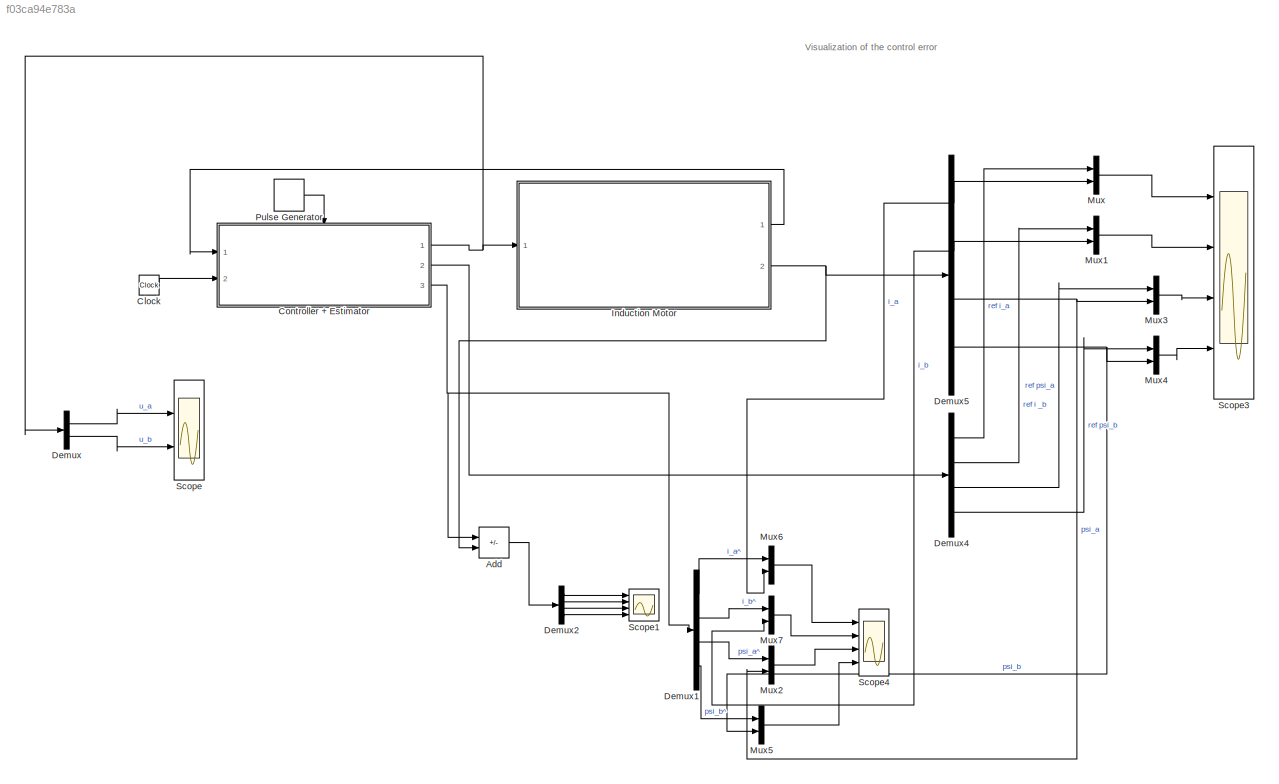
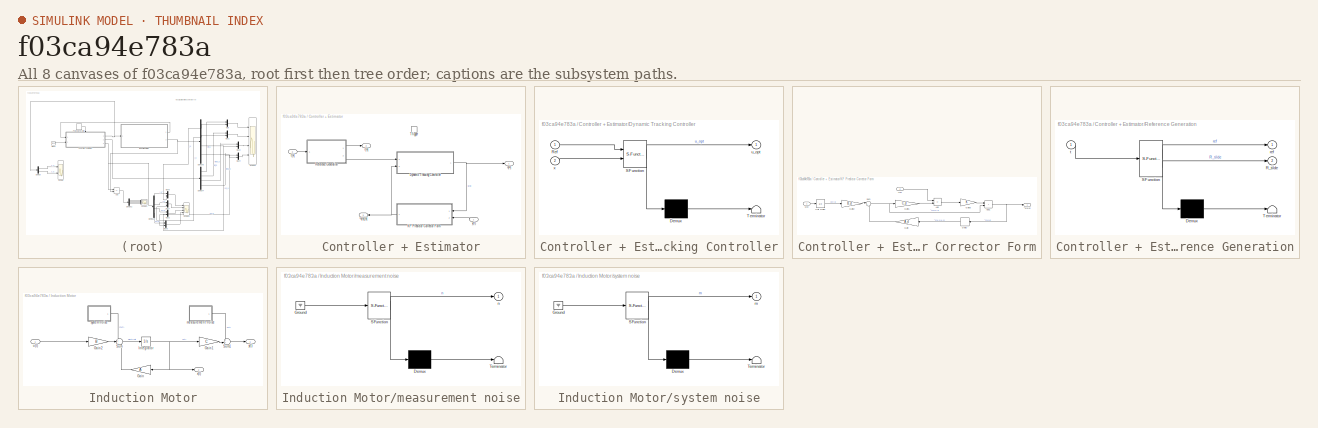
[diagram: thumbnail index - all 8 canvases of the model, root first then tree order]
MODEL slx_f03ca94e783a
KIND model
CONFIG AbsTol = auto
CONFIG EnableMultiTasking = off
CONFIG FixedStep = auto
CONFIG MaxStep = 1e-4
CONFIG MinStep = auto
CONFIG RelTol = 1e-9
CONFIG SampleTimeConstraint = Unconstrained
CONFIG SolverName = VariableStepAuto
CONFIG StartTime = 0.0
CONFIG StopTime = 1
BLOCK [Sum] Add
  IconShape = rectangular
  Inputs = +-
  Ports = [2, 1]
BLOCK [Clock] Clock
BLOCK [SubSystem] Controller + Estimator
  Ports = [2, 3, 0, 1]
  RequestExecContextInheritance = off
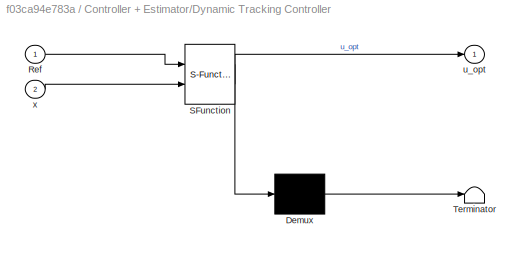
BLOCK [SubSystem] Controller + Estimator/Dynamic Tracking Controller
  ErrorFcn = Stateflow.Translate.translate
  PermitHierarchicalResolution = ExplicitOnly
  Ports = [2, 1]
  RequestExecContextInheritance = off
  SFBlockType = MATLAB Function
  TreatAsAtomicUnit = on
BLOCK [Demux] Controller + Estimator/Dynamic Tracking Controller/ Demux 
  Outputs = 1
  Ports = [1, 1]
BLOCK [S-Function] Controller + Estimator/Dynamic Tracking Controller/ SFunction 
  EnableBusSupport = on
  FunctionName = sf_sfun
  Parameters = Akf,Bkf,Ckf,D_cal,E_cal,Omega_u,Omega_x,Qkf,Rkf,W_cal_u,W_cal_x
  PortCounts = [2 2]
  Ports = [2, 2]
  SFcnIsStateOwnerBlock = off
  SFunctionDeploymentMode = off
  Tag = Stateflow S-Function 7
BLOCK [Terminator] Controller + Estimator/Dynamic Tracking Controller/ Terminator 
BLOCK [Inport] Controller + Estimator/Dynamic Tracking Controller/Ref
BLOCK [Outport] Controller + Estimator/Dynamic Tracking Controller/u_opt
BLOCK [Inport] Controller + Estimator/Dynamic Tracking Controller/x
  Port = 2
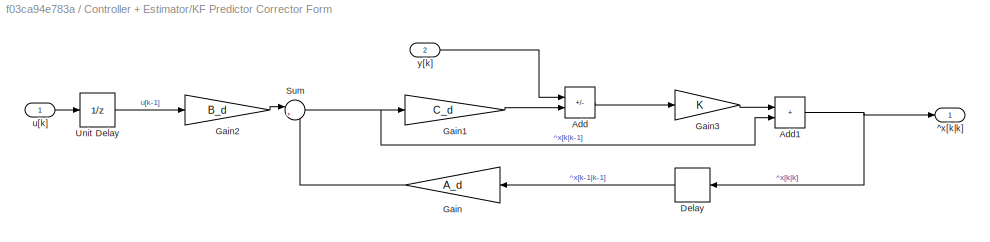
BLOCK [SubSystem] Controller + Estimator/KF Predictor Corrector Form
  Ports = [2, 1]
  RequestExecContextInheritance = off
BLOCK [Sum] Controller + Estimator/KF Predictor Corrector Form/Add
  IconShape = rectangular
  Inputs = +-
  Ports = [2, 1]
BLOCK [Sum] Controller + Estimator/KF Predictor Corrector Form/Add1
  IconShape = rectangular
  Ports = [2, 1]
BLOCK [Delay] Controller + Estimator/KF Predictor Corrector Form/Delay
  DelayLength = 1
  InitialCondition = x0
  InputPortMap = u0
  NameLocation = top
  Ports = [1, 1]
BLOCK [Gain] Controller + Estimator/KF Predictor Corrector Form/Gain
  Gain = A_d
  Multiplication = Matrix(K*u) (u vector)
BLOCK [Gain] Controller + Estimator/KF Predictor Corrector Form/Gain1
  Gain = C_d
  Multiplication = Matrix(K*u) (u vector)
BLOCK [Gain] Controller + Estimator/KF Predictor Corrector Form/Gain2
  Gain = B_d
  Multiplication = Matrix(K*u) (u vector)
BLOCK [Gain] Controller + Estimator/KF Predictor Corrector Form/Gain3
  Gain = K
  Multiplication = Matrix(K*u) (u vector)
BLOCK [Sum] Controller + Estimator/KF Predictor Corrector Form/Sum
  Inputs = |++
  Ports = [2, 1]
BLOCK [UnitDelay] Controller + Estimator/KF Predictor Corrector Form/Unit Delay
  HasFrameUpgradeWarning = on
  SampleTime = -1
BLOCK [Outport] Controller + Estimator/KF Predictor Corrector Form/^x[k|k]
BLOCK [Inport] Controller + Estimator/KF Predictor Corrector Form/u[k]
BLOCK [Inport] Controller + Estimator/KF Predictor Corrector Form/y[k]
  Port = 2
BLOCK [SubSystem] Controller + Estimator/Reference Generation
  ErrorFcn = Stateflow.Translate.translate
  PermitHierarchicalResolution = ExplicitOnly
  Ports = [1, 2]
  RequestExecContextInheritance = off
  SFBlockType = MATLAB Function
  TreatAsAtomicUnit = on
BLOCK [Demux] Controller + Estimator/Reference Generation/ Demux 
  Outputs = 1
  Ports = [1, 1]
BLOCK [S-Function] Controller + Estimator/Reference Generation/ SFunction 
  EnableBusSupport = on
  FunctionName = sf_sfun
  Parameters = T_s,i_alphabeta_0,kf,psi_alphabeta_0,w_el
  PortCounts = [1 3]
  Ports = [1, 3]
  SFcnIsStateOwnerBlock = off
  SFunctionDeploymentMode = off
  Tag = Stateflow S-Function 5
BLOCK [Terminator] Controller + Estimator/Reference Generation/ Terminator 
BLOCK [Outport] Controller + Estimator/Reference Generation/R_tilde
  Port = 2
BLOCK [Outport] Controller + Estimator/Reference Generation/ref
BLOCK [Inport] Controller + Estimator/Reference Generation/t
BLOCK [TriggerPort] Controller + Estimator/Trigger
  PortDimensions = 1
  Ports = []
  StatesWhenEnabling = held
  VariantControl = (inherit)
BLOCK [Outport] Controller + Estimator/^x[k][k]
  NameLocation = top
  Port = 3
  VectorParamsAs1DForOutWhenUnconnected = off
BLOCK [Outport] Controller + Estimator/r[k]
  Port = 2
  VectorParamsAs1DForOutWhenUnconnected = off
BLOCK [Inport] Controller + Estimator/t[k]
  Port = 2
BLOCK [Outport] Controller + Estimator/u[k]
  VectorParamsAs1DForOutWhenUnconnected = off
BLOCK [Inport] Controller + Estimator/y(t)
BLOCK [Demux] Demux
  Outputs = 2
  Ports = [1, 2]
BLOCK [Demux] Demux1
  Ports = [1, 4]
BLOCK [Demux] Demux2
  Ports = [1, 4]
BLOCK [Demux] Demux4
  Ports = [1, 4]
BLOCK [Demux] Demux5
  Ports = [1, 4]
BLOCK [SubSystem] Induction Motor
  Ports = [1, 2]
  RequestExecContextInheritance = off
BLOCK [Gain] Induction Motor/Gain
  Gain = A
  Multiplication = Matrix(K*u) (u vector)
  NameLocation = top
BLOCK [Gain] Induction Motor/Gain1
  Gain = C
  Multiplication = Matrix(K*u) (u vector)
BLOCK [Gain] Induction Motor/Gain2
  Gain = B
  Multiplication = Matrix(K*u) (u vector)
BLOCK [Integrator] Induction Motor/Integrator
  InitialCondition = x0
  Ports = [1, 1]
BLOCK [Sum] Induction Motor/Sum
  Inputs = +++
  Ports = [3, 1]
BLOCK [Sum] Induction Motor/Sum1
  Inputs = ++|
  Ports = [2, 1]
BLOCK [SubSystem] Induction Motor/measurement noise
  ErrorFcn = Stateflow.Translate.translate
  PermitHierarchicalResolution = ExplicitOnly
  Ports = [0, 1]
  RequestExecContextInheritance = off
  SFBlockType = MATLAB Function
  TreatAsAtomicUnit = on
BLOCK [Demux] Induction Motor/measurement noise/ Demux 
  Outputs = 1
  Ports = [1, 1]
BLOCK [Ground] Induction Motor/measurement noise/ Ground 
BLOCK [S-Function] Induction Motor/measurement noise/ SFunction 
  EnableBusSupport = on
  FunctionName = sf_sfun
  PortCounts = [1 2]
  Ports = [1, 2]
  SFcnIsStateOwnerBlock = off
  SFunctionDeploymentMode = off
  Tag = Stateflow S-Function 1
BLOCK [Terminator] Induction Motor/measurement noise/ Terminator 
BLOCK [Outport] Induction Motor/measurement noise/n
  VectorParamsAs1DForOutWhenUnconnected = off
BLOCK [SubSystem] Induction Motor/system noise
  ErrorFcn = Stateflow.Translate.translate
  PermitHierarchicalResolution = ExplicitOnly
  Ports = [0, 1]
  RequestExecContextInheritance = off
  SFBlockType = MATLAB Function
  TreatAsAtomicUnit = on
BLOCK [Demux] Induction Motor/system noise/ Demux 
  Outputs = 1
  Ports = [1, 1]
BLOCK [Ground] Induction Motor/system noise/ Ground 
BLOCK [S-Function] Induction Motor/system noise/ SFunction 
  EnableBusSupport = on
  FunctionName = sf_sfun
  PortCounts = [1 2]
  Ports = [1, 2]
  SFcnIsStateOwnerBlock = off
  SFunctionDeploymentMode = off
  Tag = Stateflow S-Function 2
BLOCK [Terminator] Induction Motor/system noise/ Terminator 
BLOCK [Outport] Induction Motor/system noise/m
  VectorParamsAs1DForOutWhenUnconnected = off
BLOCK [Inport] Induction Motor/u(t)
BLOCK [Outport] Induction Motor/x(t)
  Port = 2
BLOCK [Outport] Induction Motor/y(t)
BLOCK [Mux] Mux
  DisplayOption = bar
  Inputs = 2
  Ports = [2, 1]
BLOCK [Mux] Mux1
  DisplayOption = bar
  Inputs = 2
  Ports = [2, 1]
BLOCK [Mux] Mux2
  DisplayOption = bar
  Inputs = 2
  Ports = [2, 1]
BLOCK [Mux] Mux3
  DisplayOption = bar
  Inputs = 2
  Ports = [2, 1]
BLOCK [Mux] Mux4
  DisplayOption = bar
  Inputs = 2
  Ports = [2, 1]
BLOCK [Mux] Mux5
  DisplayOption = bar
  Inputs = 2
  Ports = [2, 1]
BLOCK [Mux] Mux6
  DisplayOption = bar
  Inputs = 2
  Ports = [2, 1]
BLOCK [Mux] Mux7
  DisplayOption = bar
  Inputs = 2
  Ports = [2, 1]
BLOCK [DiscretePulseGenerator] Pulse Generator
  Period = T_s
  Ports = [0, 1]
  PulseType = Time based
  PulseWidth = 5
BLOCK [Scope] Scope
  Floating = off
  NumInputPorts = 2
  Ports = [2]
  ScopeSpecificationString = Simulink.scopes.TimeScopeBlockCfg('CurrentConfiguration', extmgr.ConfigurationSet(extmgr.Configuration('Core','General UI',true),extmgr.Configuration('Core','Source UI',true),extmgr.Configuration('Sources','WiredSimulink',true,'DataLoggingVariableName','ScopeData2'),extmgr.Configuration('Visuals','Time Domain',true,'TimeAxisLabels','All','SerializedDisplays',{struct('MinYLimReal','-339.39029','Max...<+1942ch>
BLOCK [Scope] Scope1
  Floating = off
  NumInputPorts = 4
  Ports = [4]
  ScopeSpecificationString = Simulink.scopes.TimeScopeBlockCfg('CurrentConfiguration', extmgr.ConfigurationSet(extmgr.Configuration('Core','General UI',true),extmgr.Configuration('Core','Source UI',true),extmgr.Configuration('Sources','WiredSimulink',true,'DataLoggingVariableName','ScopeData1'),extmgr.Configuration('Visuals','Time Domain',true,'SerializedDisplays',{struct('MinYLimReal','-0.62602','MaxYLimReal','0.19656','YLab...<+3545ch>
BLOCK [Scope] Scope3
  Floating = off
  NumInputPorts = 4
  Ports = [4]
  ScopeSpecificationString = Simulink.scopes.TimeScopeBlockCfg('CurrentConfiguration', extmgr.ConfigurationSet(extmgr.Configuration('Core','General UI',true),extmgr.Configuration('Core','Source UI',true),extmgr.Configuration('Sources','WiredSimulink',true,'DataLoggingVariableName','ScopeData1'),extmgr.Configuration('Visuals','Time Domain',true,'SerializedDisplays',{struct('MinYLimReal','-4.96197','MaxYLimReal','4.95544','YLab...<+3647ch>
BLOCK [Scope] Scope4
  Floating = off
  NumInputPorts = 4
  Ports = [4]
  ScopeSpecificationString = Simulink.scopes.TimeScopeBlockCfg('CurrentConfiguration', extmgr.ConfigurationSet(extmgr.Configuration('Core','General UI',true),extmgr.Configuration('Core','Source UI',true),extmgr.Configuration('Sources','WiredSimulink',true,'DataLoggingVariableName','ScopeData1'),extmgr.Configuration('Visuals','Time Domain',true,'SerializedDisplays',{struct('MinYLimReal','-4.93948','MaxYLimReal','4.94514','YLab...<+3721ch>
ANNOTATION (root): Visualization of the control error
LINE Add:1 -> Demux2:1
LINE Clock:1 -> Controller + Estimator:2
NET Controller + Estimator/Dynamic Tracking Controller:1 -> Controller + Estimator/KF Predictor Corrector Form:1, Controller + Estimator/u[k]:1
NET Controller + Estimator/KF Predictor Corrector Form/Add1:1 -> Controller + Estimator/KF Predictor Corrector Form/Delay:1, Controller + Estimator/KF Predictor Corrector Form/^x[k|k]:1
LINE Controller + Estimator/KF Predictor Corrector Form/Add:1 -> Controller + Estimator/KF Predictor Corrector Form/Gain3:1
LINE Controller + Estimator/KF Predictor Corrector Form/Delay:1 -> Controller + Estimator/KF Predictor Corrector Form/Gain:1
LINE Controller + Estimator/KF Predictor Corrector Form/Gain1:1 -> Controller + Estimator/KF Predictor Corrector Form/Add:2
LINE Controller + Estimator/KF Predictor Corrector Form/Gain2:1 -> Controller + Estimator/KF Predictor Corrector Form/Sum:1
LINE Controller + Estimator/KF Predictor Corrector Form/Gain3:1 -> Controller + Estimator/KF Predictor Corrector Form/Add1:1
LINE Controller + Estimator/KF Predictor Corrector Form/Gain:1 -> Controller + Estimator/KF Predictor Corrector Form/Sum:2
NET Controller + Estimator/KF Predictor Corrector Form/Sum:1 -> Controller + Estimator/KF Predictor Corrector Form/Add1:2, Controller + Estimator/KF Predictor Corrector Form/Gain1:1
LINE Controller + Estimator/KF Predictor Corrector Form/Unit Delay:1 -> Controller + Estimator/KF Predictor Corrector Form/Gain2:1
LINE Controller + Estimator/KF Predictor Corrector Form/u[k]:1 -> Controller + Estimator/KF Predictor Corrector Form/Unit Delay:1
LINE Controller + Estimator/KF Predictor Corrector Form/y[k]:1 -> Controller + Estimator/KF Predictor Corrector Form/Add:1
NET Controller + Estimator/KF Predictor Corrector Form:1 -> Controller + Estimator/Dynamic Tracking Controller:2, Controller + Estimator/^x[k][k]:1
LINE Controller + Estimator/Reference Generation:1 -> Controller + Estimator/r[k]:1
LINE Controller + Estimator/Reference Generation:2 -> Controller + Estimator/Dynamic Tracking Controller:1
LINE Controller + Estimator/t[k]:1 -> Controller + Estimator/Reference Generation:1
LINE Controller + Estimator/y(t):1 -> Controller + Estimator/KF Predictor Corrector Form:2
NET Controller + Estimator:1 -> Demux:1, Induction Motor:1
LINE Controller + Estimator:2 -> Demux4:1
NET Controller + Estimator:3 -> Add:1, Demux1:1
LINE Demux1:1 -> Mux6:1
LINE Demux1:2 -> Mux7:1
LINE Demux1:3 -> Mux2:1
LINE Demux1:4 -> Mux5:1
LINE Demux2:1 -> Scope1:1
LINE Demux2:2 -> Scope1:2
LINE Demux2:3 -> Scope1:3
LINE Demux2:4 -> Scope1:4
LINE Demux4:1 -> Mux:1
LINE Demux4:2 -> Mux1:1
LINE Demux4:3 -> Mux3:1
LINE Demux4:4 -> Mux4:1
NET Demux5:1 -> Mux6:2, Mux:2
NET Demux5:2 -> Mux1:2, Mux7:2
NET Demux5:3 -> Mux2:2, Mux3:2
NET Demux5:4 -> Mux4:2, Mux5:2
LINE Demux:1 -> Scope:1
LINE Demux:2 -> Scope:2
LINE Induction Motor/Gain1:1 -> Induction Motor/Sum1:2
LINE Induction Motor/Gain2:1 -> Induction Motor/Sum:2
LINE Induction Motor/Gain:1 -> Induction Motor/Sum:3
NET Induction Motor/Integrator:1 -> Induction Motor/Gain1:1, Induction Motor/Gain:1, Induction Motor/x(t):1
LINE Induction Motor/Sum1:1 -> Induction Motor/y(t):1
LINE Induction Motor/Sum:1 -> Induction Motor/Integrator:1
LINE Induction Motor/measurement noise:1 -> Induction Motor/Sum1:1
LINE Induction Motor/system noise:1 -> Induction Motor/Sum:1
LINE Induction Motor/u(t):1 -> Induction Motor/Gain2:1
LINE Induction Motor:1 -> Controller + Estimator:1
NET Induction Motor:2 -> Add:2, Demux5:1
LINE Mux1:1 -> Scope3:2
LINE Mux2:1 -> Scope4:3
LINE Mux3:1 -> Scope3:3
LINE Mux4:1 -> Scope3:4
LINE Mux5:1 -> Scope4:4
LINE Mux6:1 -> Scope4:1
LINE Mux7:1 -> Scope4:2
LINE Mux:1 -> Scope3:1
LINE Pulse Generator:1 -> Controller + Estimator:trigger
note: NET lines group one-source signal fan-out (src -> all destinations, sorted); 1:1 wires keep LINE
CHART Induction Motor/measurement noise states=1 transitions=1
  STATE_LABEL 'eML_blk_kernel()'
  STATE_LABEL "SCRIPT:\nfunction n = fcn()\nn=randn(2,1).*sqrt([1e-3 1e-3]');\n"
CHART Induction Motor/system noise states=1 transitions=1
  STATE_LABEL 'eML_blk_kernel()'
  STATE_LABEL "SCRIPT:\nfunction m = fcn()\nm=randn(4,1).*sqrt([1e-5 1e-5 1e-5 1e-5]');\n"
CHART Controller + Estimator/Reference Generation states=1 transitions=1
  STATE_LABEL 'eML_blk_kernel()'
  STATE_LABEL 'SCRIPT:\nfunction [ref, R_tilde]= fcn(t,psi_alphabeta_0, T_s, kf, w_el, i_alphabeta_0)\n\nref = [[cos(t*w_el)  -sin(t*w_el);\n        sin(t*w_el)   cos(t*w_el)]*i_alphabeta_0;\n       [cos(t*w_el)  -sin(t*w_el);\n        sin(t*w_el)   cos(t*w_el)]*psi_alphabeta_0];\n\nR_tilde = ref;\n\nfor ii = 1:kf\n    R_tilde = [R_tilde;\n               [cos((t + ii * T_s)*w_el)   -sin((t + ii * T_s)*w_el);\n               ...<+237ch>'
CHART Controller + Estimator/Dynamic Tracking Controller states=1 transitions=1
  STATE_LABEL 'eML_blk_kernel()'
  STATE_LABEL "SCRIPT:\nfunction u_opt = fcn(Ref, x, Akf, Bkf, Ckf, Qkf, Rkf, E_cal, D_cal, W_cal_x, W_cal_u, Omega_x, Omega_u)\ncoder.extrinsic('quadprog')\n\npersistent u_old\n\nif isempty(u_old)\n    u_old = zeros(2, 1);\n    u_opt = zeros(2, 1); \nend\n\n% Solution of the QP\n\n\nH = 2 * (Bkf' * Ckf' * Qkf * Ckf * Bkf + (eye(length(D_cal)) - D_cal)' * Rkf * (eye(length(D_cal)) - D_cal));\nf = 2 * (x' * Akf' * Ckf' * Qkf * ...<+240ch>"
CHART  states=0 transitions=0
CHART  states=0 transitions=0
CHART  states=0 transitions=0
CHART  states=0 transitions=0
